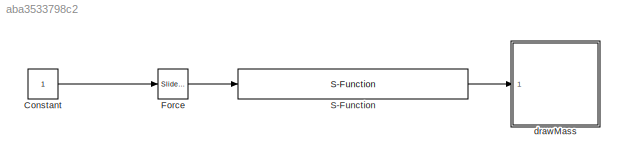
MODEL slx_aba3533798c2
KIND model
CONFIG AbsTol = auto
CONFIG FixedStep = auto
CONFIG MaxStep = auto
CONFIG MinStep = auto
CONFIG RelTol = 1e-3
CONFIG SampleTimeConstraint = Unconstrained
CONFIG Solver = ode45
CONFIG SolverMode = Auto
CONFIG SolverName = ode45
CONFIG StartTime = 0.0
CONFIG StopTime = inf
BLOCK [Constant] Constant
BLOCK [Reference] Force  REF=simulink/Math
Operations/Slider
Gain
  Ports = [1, 1]
  SourceBlock = simulink/Math\nOperations/Slider\nGain
  SourceType = Slider Gain
  gain = 4.5622
  high = 10
  low = -10
BLOCK [S-Function] S-Function
  FunctionName = mass_spring_damper_dynamics
  Parameters = AP
  Ports = [1, 1]
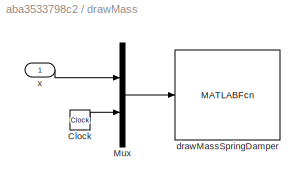
BLOCK [SubSystem] drawMass
  Ports = [1]
  RequestExecContextInheritance = off
BLOCK [Clock] drawMass/Clock
BLOCK [Mux] drawMass/Mux
  DisplayOption = bar
  Inputs = 2
  Ports = [2, 1]
BLOCK [MATLABFcn] drawMass/drawMassSpringDamper
  MATLABFcn = drawMassSpringDamper(u)
  OutputDimensions = 0
  Ports = [1]
BLOCK [Inport] drawMass/x
  IconDisplay = Port number
LINE Constant:1 -> Force:1
LINE Force:1 -> S-Function:1
LINE S-Function:1 -> drawMass:1
LINE drawMass/Clock:1 -> drawMass/Mux:2
LINE drawMass/Mux:1 -> drawMass/drawMassSpringDamper:1
LINE drawMass/x:1 -> drawMass/Mux:1
